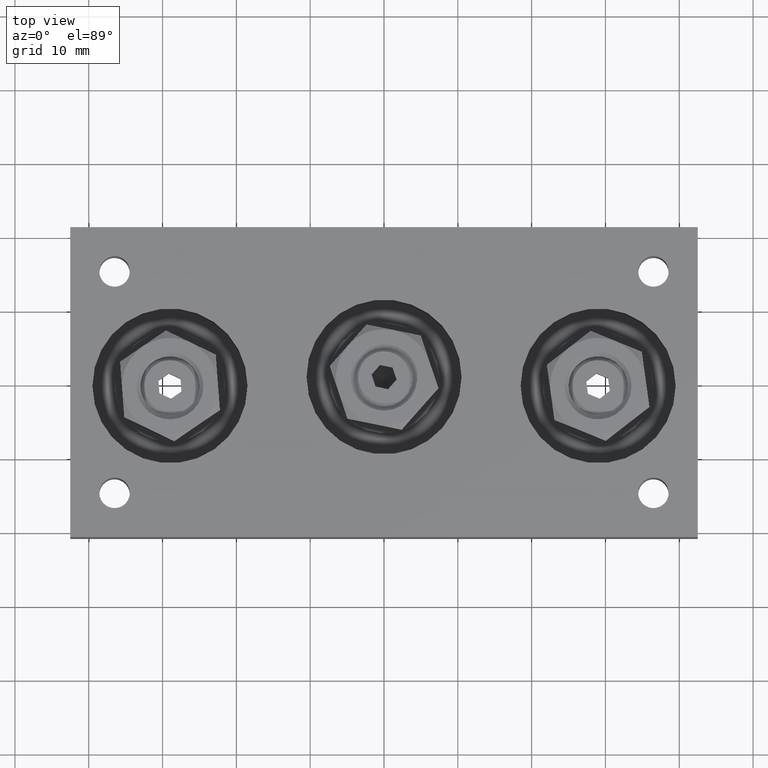
[diagram: clean part render]
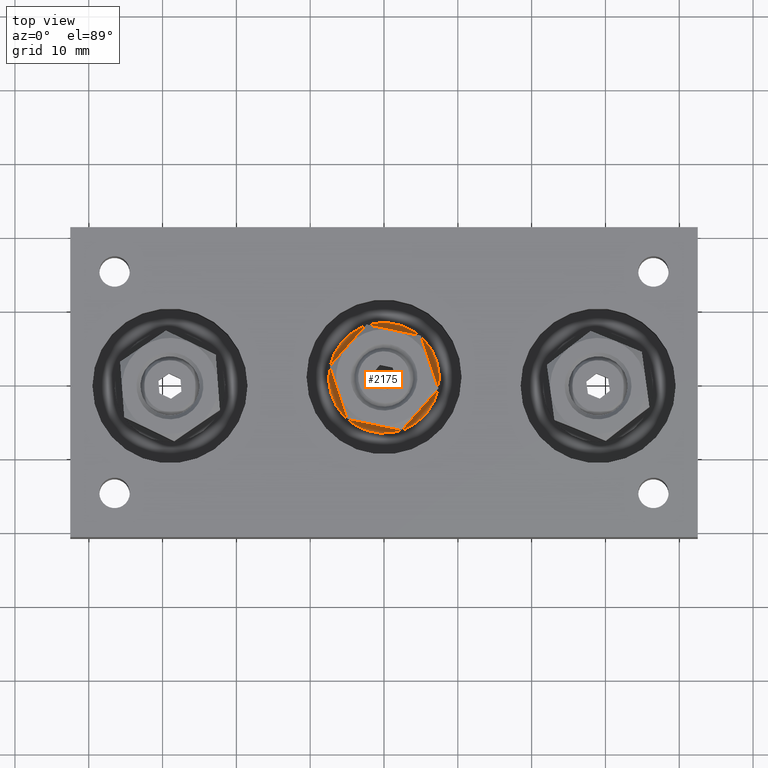
[diagram: same view with one face highlighted and labeled with its STEP entity id]
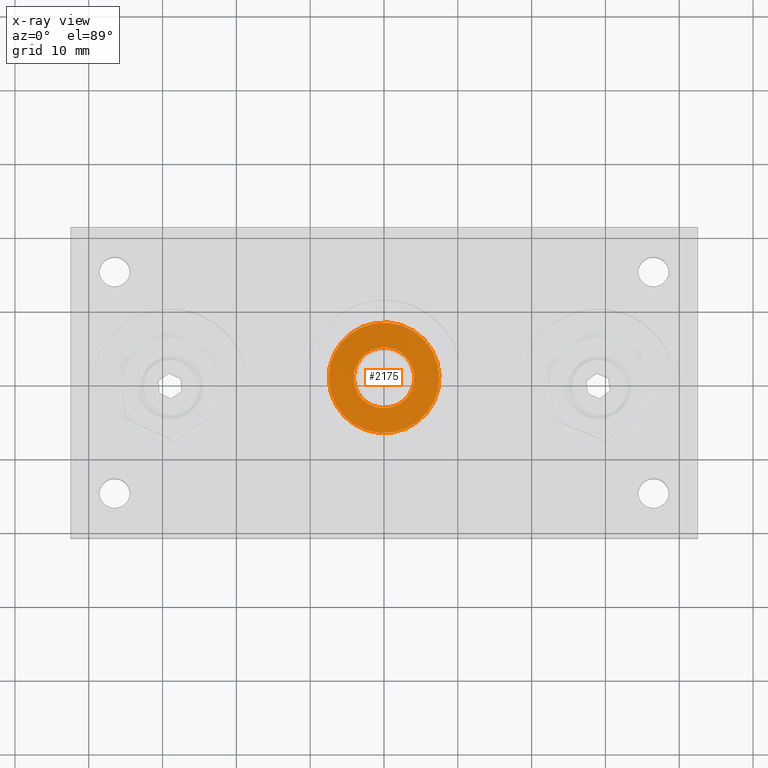
[diagram: x-ray of the same camera — body ghosted, the highlighted face saturated]
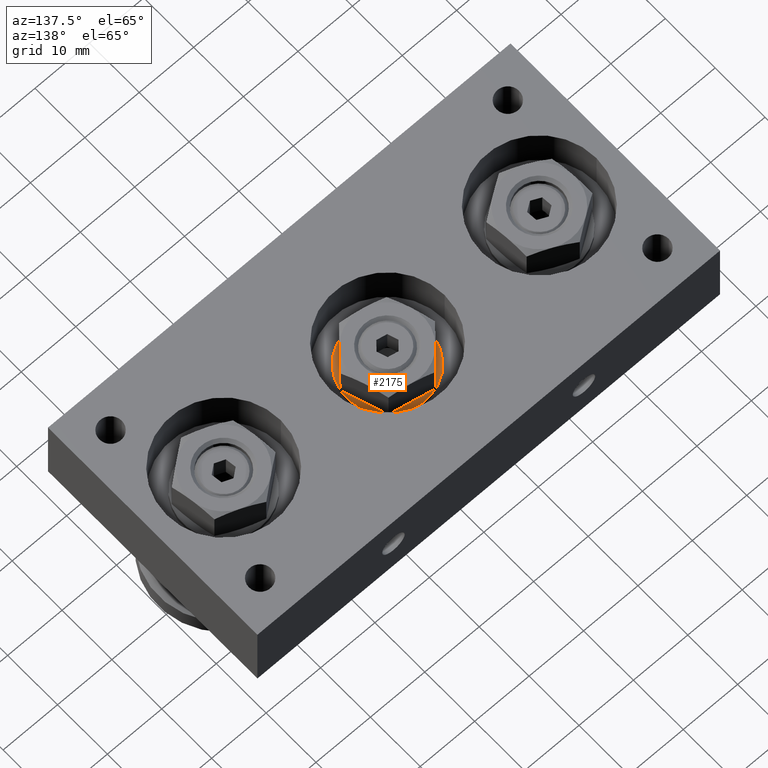
[diagram: same view with one face highlighted and labeled with its STEP entity id]
A machine part, top view. The second image highlights one B-rep face of the part: STEP entity #2175.
The next image is the same camera in x-ray: the body ghosted, the highlighted face saturated — about 0% of this face is hidden behind the body in this view.
A second angle (auxiliary view) of the same face is appended — the face is thin or edge-on in the first view.
In plain terms, the highlighted conical surface has half-angle 83.29 deg.
Its self-contained STEP definition (entity closure, byte-faithful):
#394=FACE_OUTER_BOUND('',#565,.T.);
#565=EDGE_LOOP('',(#1926,#1927,#1928,#1929));
#717=LINE('',#3908,#853);
#853=VECTOR('',#3271,5.8);
#973=CIRCLE('',#2637,7.5);
#974=CIRCLE('',#2638,4.1);
#1147=VERTEX_POINT('',#3905);
#1148=VERTEX_POINT('',#3907);
#1409=EDGE_CURVE('',#1147,#1147,#973,.T.);
#1410=EDGE_CURVE('',#1147,#1148,#717,.T.);
#1411=EDGE_CURVE('',#1148,#1148,#974,.T.);
#1926=ORIENTED_EDGE('',*,*,#1409,.F.);
#1927=ORIENTED_EDGE('',*,*,#1410,.T.);
#1928=ORIENTED_EDGE('',*,*,#1411,.T.);
#1929=ORIENTED_EDGE('',*,*,#1410,.F.);
#2052=CONICAL_SURFACE('',#2636,5.8,1.45368758222803);
#2175=ADVANCED_FACE('',(#394),#2052,.T.);
#2636=AXIS2_PLACEMENT_3D('',#3904,#3267,#3268);
#2637=AXIS2_PLACEMENT_3D('',#3906,#3269,#3270);
#2638=AXIS2_PLACEMENT_3D('',#3909,#3272,#3273);
#3267=DIRECTION('center_axis',(0.,-1.,0.));
#3268=DIRECTION('ref_axis',(1.,0.,0.));
#3269=DIRECTION('center_axis',(0.,-1.,0.));
#3270=DIRECTION('ref_axis',(1.,0.,0.));
#3271=DIRECTION('',(0.993150604322876,0.116841247567397,1.21625870865527E-16));
#3272=DIRECTION('center_axis',(0.,-1.,0.));
#3273=DIRECTION('ref_axis',(1.,0.,0.));
#3904=CARTESIAN_POINT('Origin',(0.,1.,0.));
#3905=CARTESIAN_POINT('',(-7.5,0.8,-9.18485099360515E-16));
#3906=CARTESIAN_POINT('Origin',(0.,0.8,0.));
#3907=CARTESIAN_POINT('',(-4.1,1.2,-5.02105187650415E-16));
#3908=CARTESIAN_POINT('',(-5.8,1.,-7.10295143505465E-16));
#3909=CARTESIAN_POINT('Origin',(0.,1.2,0.));